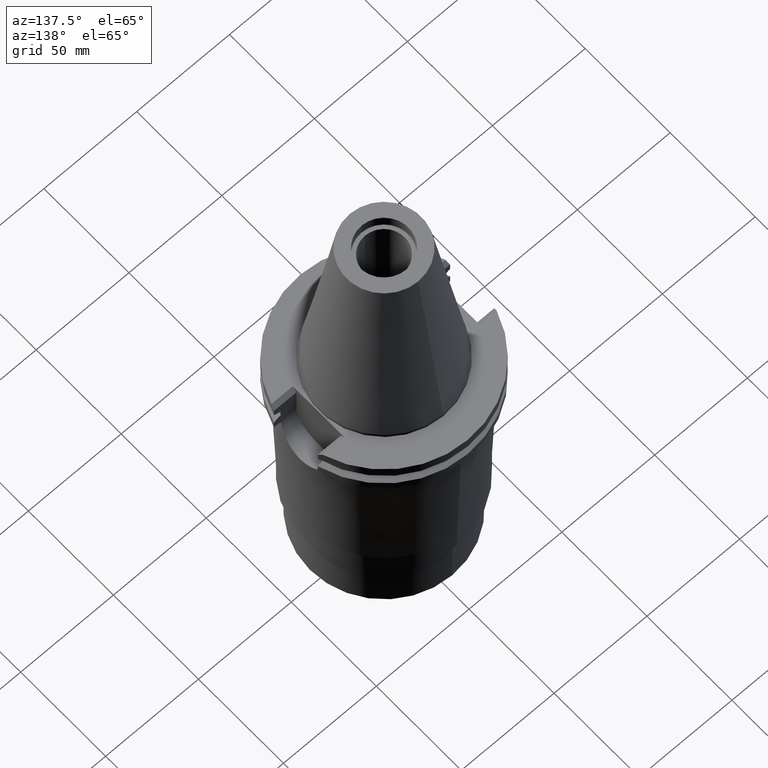
[diagram: clean part render]
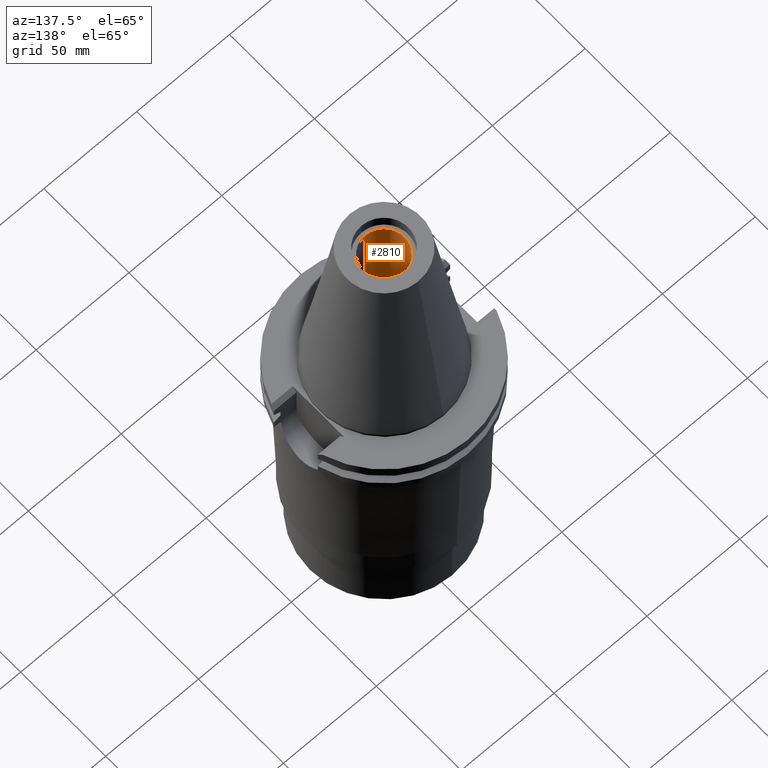
[diagram: same view with one face highlighted and labeled with its STEP entity id]
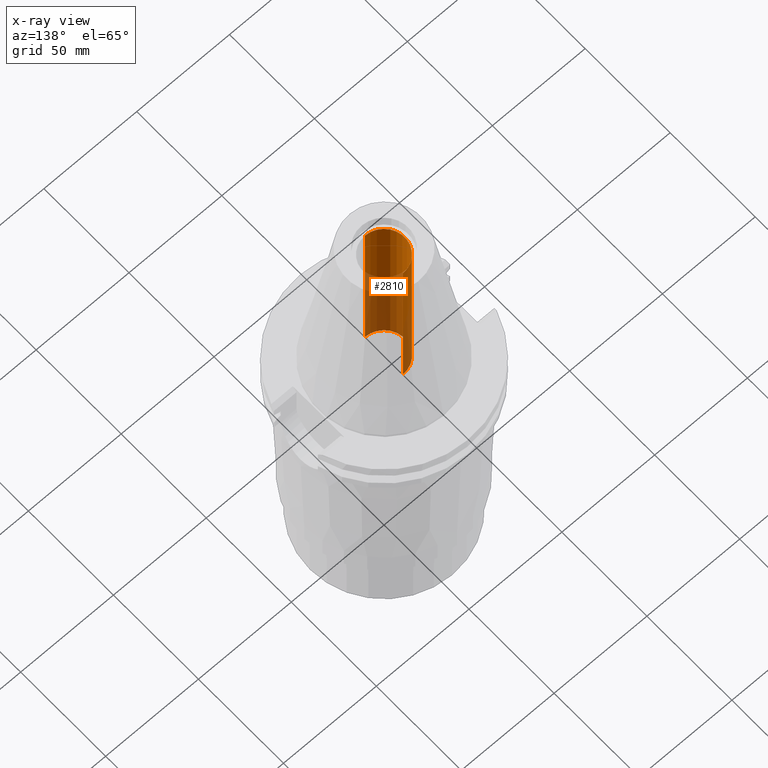
[diagram: x-ray of the same camera — body ghosted, the highlighted face saturated]
A machine part, auxiliary view. The second image highlights one B-rep face of the part: STEP entity #2810.
The next image is the same camera in x-ray: the body ghosted, the highlighted face saturated — about 54% of this face is hidden behind the body in this view.
In plain terms, the highlighted cylindrical surface (edge-blend (fillet) strip) has radius 11.15 mm, axis along (0, 0, -1).
Its self-contained STEP definition (entity closure, byte-faithful):
#1405=CARTESIAN_POINT('',(0.E0,2.625887666732E-14,-7.105427357601E-14));
#1406=DIRECTION('',(0.E0,0.E0,-1.E0));
#1407=DIRECTION('',(0.E0,-1.E0,0.E0));
#1408=AXIS2_PLACEMENT_3D('',#1405,#1406,#1407);
#1420=DIRECTION('',(0.E0,0.E0,1.E0));
#1421=VECTOR('',#1420,9.525E1);
#1422=CARTESIAN_POINT('',(0.E0,1.115E1,-7.105427357601E-14));
#1423=LINE('',#1422,#1421);
#1435=DIRECTION('',(0.E0,0.E0,1.E0));
#1436=VECTOR('',#1435,9.525E1);
#1437=CARTESIAN_POINT('',(0.E0,-1.115E1,-7.105427357601E-14));
#1438=LINE('',#1437,#1436);
#1466=CARTESIAN_POINT('',(0.E0,2.625887666732E-14,9.525E1));
#1467=DIRECTION('',(0.E0,0.E0,1.E0));
#1468=DIRECTION('',(0.E0,1.E0,0.E0));
#1469=AXIS2_PLACEMENT_3D('',#1466,#1467,#1468);
#1500=CARTESIAN_POINT('',(0.E0,-1.115E1,9.525E1));
#1501=CARTESIAN_POINT('',(0.E0,1.115E1,9.525E1));
#1502=VERTEX_POINT('',#1500);
#1503=VERTEX_POINT('',#1501);
#1504=CARTESIAN_POINT('',(0.E0,1.115E1,-7.105427357601E-14));
#1505=VERTEX_POINT('',#1504);
#1506=CARTESIAN_POINT('',(0.E0,-1.115E1,-7.105427357601E-14));
#1507=VERTEX_POINT('',#1506);
#2798=CARTESIAN_POINT('',(0.E0,2.625887666732E-14,1.1442E2));
#2799=DIRECTION('',(0.E0,0.E0,-1.E0));
#2800=DIRECTION('',(0.E0,-1.E0,0.E0));
#2801=AXIS2_PLACEMENT_3D('',#2798,#2799,#2800);
#2802=CYLINDRICAL_SURFACE('',#2801,1.115E1);
#2803=ORIENTED_EDGE('',*,*,#2788,.F.);
#2804=ORIENTED_EDGE('',*,*,#2765,.F.);
#2805=ORIENTED_EDGE('',*,*,#2792,.T.);
#2807=ORIENTED_EDGE('',*,*,#2806,.F.);
#2808=EDGE_LOOP('',(#2803,#2804,#2805,#2807));
#2809=FACE_OUTER_BOUND('',#2808,.F.);
#1409=CIRCLE('',#1408,1.115E1);
#1470=CIRCLE('',#1469,1.115E1);
#2765=EDGE_CURVE('',#1507,#1505,#1409,.T.);
#2788=EDGE_CURVE('',#1505,#1503,#1423,.T.);
#2792=EDGE_CURVE('',#1507,#1502,#1438,.T.);
#2806=EDGE_CURVE('',#1503,#1502,#1470,.T.);
#2810=ADVANCED_FACE('',(#2809),#2802,.F.);